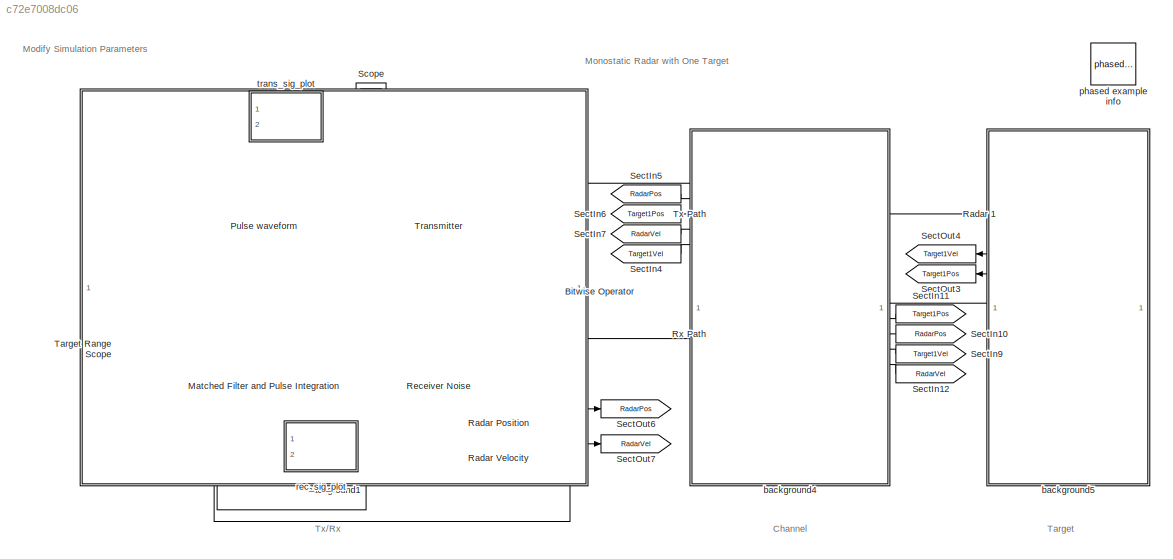
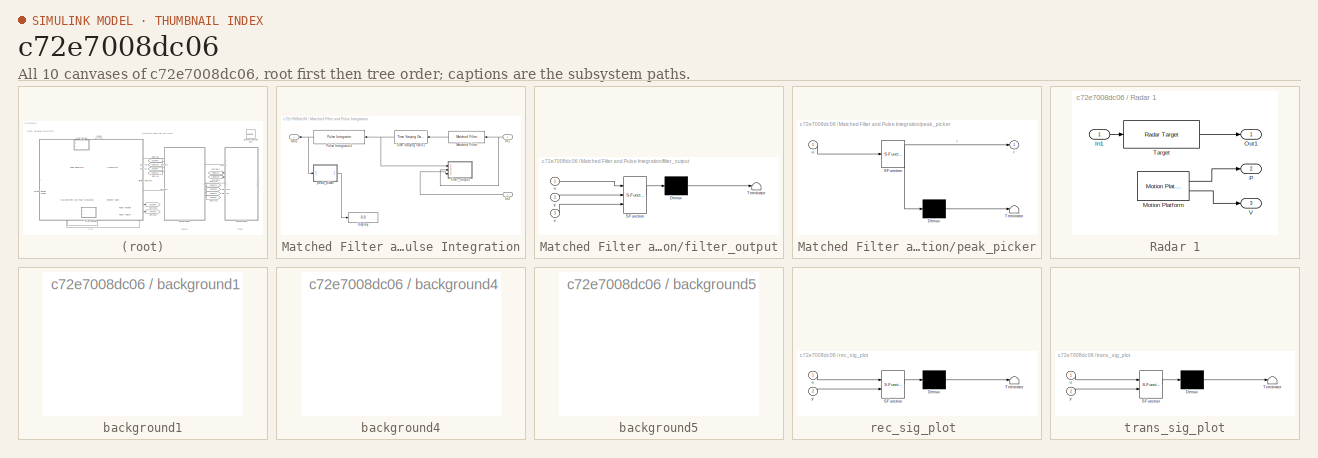
[diagram: thumbnail index - all 10 canvases of the model, root first then tree order]
MODEL slx_c72e7008dc06
KIND model
CONFIG AbsTol = auto
CONFIG FixedStep = auto
CONFIG MaxStep = auto
CONFIG MinStep = auto
CONFIG PreLoadFcn = helperslexMonostaticRadarParam()
CONFIG RelTol = 1e-3
CONFIG SampleTimeConstraint = Unconstrained
CONFIG Solver = FixedStepDiscrete
CONFIG SolverMode = Auto
CONFIG SolverName = FixedStepDiscrete
CONFIG StartTime = 0.0
CONFIG StopTime = 99/paramRadar.prf
BLOCK [Reference] Bitwise Operator  REF=simulink/Logic and Bit
Operations/Bitwise
Operator
  Ports = [1, 1]
  SourceBlock = simulink/Logic and Bit\nOperations/Bitwise\nOperator
  SourceType = Bitwise Operator
BLOCK [SubSystem] Matched Filter and Pulse Integration
  Ports = [2, 1]
  RequestExecContextInheritance = off
  Variant = off
BLOCK [Display] Matched Filter and Pulse Integration/Display
  Decimation = 1
  Ports = [1]
BLOCK [Inport] Matched Filter and Pulse Integration/In1
  IconDisplay = Port number
BLOCK [Inport] Matched Filter and Pulse Integration/In2
  IconDisplay = Port number
  Port = 2
BLOCK [Reference] Matched Filter and Pulse Integration/Matched Filter  REF=phaseddetectlib/Matched Filter
  Ports = [1, 1]
  SourceBlock = phaseddetectlib/Matched Filter
  SourceType = phased.MatchedFilter
BLOCK [Outport] Matched Filter and Pulse Integration/Out1
  IconDisplay = Port number
BLOCK [Reference] Matched Filter and Pulse Integration/Pulse Integrator1  REF=phaseddetectlib/Pulse Integrator
  Ports = [1, 1]
  SourceBlock = phaseddetectlib/Pulse Integrator
  SourceType = Pulse Integrator
BLOCK [Reference] Matched Filter and Pulse Integration/Time Varying Gain1  REF=phaseddetectlib/Time Varying Gain
  Ports = [1, 1]
  SourceBlock = phaseddetectlib/Time Varying Gain
  SourceType = phased.TimeVaryingGain
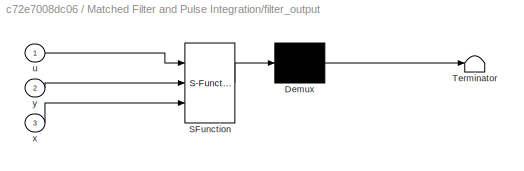
BLOCK [SubSystem] Matched Filter and Pulse Integration/filter_output
  ErrorFcn = Stateflow.Translate.translate
  PermitHierarchicalResolution = ExplicitOnly
  Ports = [3]
  RequestExecContextInheritance = off
  SFBlockType = MATLAB Function
  TreatAsAtomicUnit = on
  Variant = off
BLOCK [Demux] Matched Filter and Pulse Integration/filter_output/ Demux 
  Outputs = 1
  Ports = [1, 1]
BLOCK [S-Function] Matched Filter and Pulse Integration/filter_output/ SFunction 
  EnableBusSupport = on
  FunctionName = sf_sfun
  PortCounts = [3 1]
  Ports = [3, 1]
  SFunctionDeploymentMode = off
  Tag = Stateflow S-Function slexMonostaticRadarExample 4
BLOCK [Terminator] Matched Filter and Pulse Integration/filter_output/ Terminator 
BLOCK [Inport] Matched Filter and Pulse Integration/filter_output/u
  IconDisplay = Port number
BLOCK [Inport] Matched Filter and Pulse Integration/filter_output/x
  IconDisplay = Port number
  Port = 3
BLOCK [Inport] Matched Filter and Pulse Integration/filter_output/y
  IconDisplay = Port number
  Port = 2
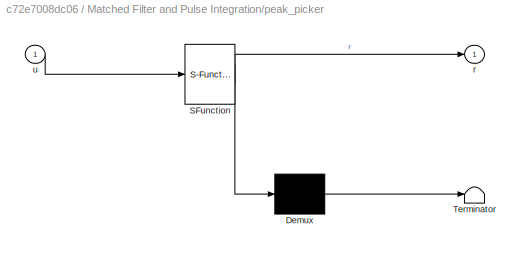
BLOCK [SubSystem] Matched Filter and Pulse Integration/peak_picker
  ErrorFcn = Stateflow.Translate.translate
  PermitHierarchicalResolution = ExplicitOnly
  Ports = [1, 1]
  RequestExecContextInheritance = off
  SFBlockType = MATLAB Function
  TreatAsAtomicUnit = on
  Variant = off
BLOCK [Demux] Matched Filter and Pulse Integration/peak_picker/ Demux 
  Outputs = 1
  Ports = [1, 1]
BLOCK [S-Function] Matched Filter and Pulse Integration/peak_picker/ SFunction 
  EnableBusSupport = on
  FunctionName = sf_sfun
  PortCounts = [1 2]
  Ports = [1, 2]
  SFunctionDeploymentMode = off
  Tag = Stateflow S-Function slexMonostaticRadarExample 3
BLOCK [Terminator] Matched Filter and Pulse Integration/peak_picker/ Terminator 
BLOCK [Outport] Matched Filter and Pulse Integration/peak_picker/r
  IconDisplay = Port number
BLOCK [Inport] Matched Filter and Pulse Integration/peak_picker/u
  IconDisplay = Port number
BLOCK [Reference] Pulse waveform  REF=phasedwavlib/Rectangular Waveform
  Ports = [0, 1]
  SourceBlock = phasedwavlib/Rectangular Waveform
  SourceType = phased.RectangularWaveform
BLOCK [SubSystem] Radar 1
  Ports = [1, 3]
  RequestExecContextInheritance = off
  Variant = off
BLOCK [Inport] Radar 1/In1
  IconDisplay = Port number
BLOCK [Reference] Radar 1/Motion Platform  REF=phasedenvlib/Motion Platform
  Ports = [0, 2]
  SourceBlock = phasedenvlib/Motion Platform
  SourceType = phased.Platform
BLOCK [Outport] Radar 1/Out1
  IconDisplay = Port number
BLOCK [Outport] Radar 1/P
  IconDisplay = Port number
  Port = 2
BLOCK [Reference] Radar 1/Target  REF=phasedenvlib/Radar Target
  Ports = [1, 1]
  SourceBlock = phasedenvlib/Radar Target
  SourceType = phased.RadarTarget
BLOCK [Outport] Radar 1/V
  IconDisplay = Port number
  Port = 3
BLOCK [Constant] Radar Position
  SampleTime = 1/paramRadar.prf
  Value = [ 0; 0; 0 ]
BLOCK [Constant] Radar Velocity
  SampleTime = 1/paramRadar.prf
  Value = [ 0; 0; 0 ]
BLOCK [Reference] Receiver Noise  REF=phasedtxrxlib/Receiver Preamp
  Ports = [2, 1]
  SourceBlock = phasedtxrxlib/Receiver Preamp
  SourceType = phased.ReceiverPreamp
BLOCK [Reference] Rx Path  REF=phasedenvlib/Free Space
  Ports = [5, 1]
  SourceBlock = phasedenvlib/Free Space
  SourceType = phased.FreeSpace
BLOCK [Scope] Scope
  Ports = [1]
  ScopeSpecificationString = Simulink.scopes.TimeScopeBlockCfg('CurrentConfiguration', extmgr.ConfigurationSet(extmgr.Configuration('Core','General UI',true,'DisplayFullSourceName',true),extmgr.Configuration('Core','Source UI',true),extmgr.Configuration('Sources','WiredSimulink',true),extmgr.Configuration('Visuals','Time Domain',true,'SerializedDisplays',{struct('MinYLimReal','-0.41955','MaxYLimReal','3.77593','YLabelReal',''...<+11716ch>
BLOCK [From] SectIn10
  GotoTag = RadarPos
BLOCK [From] SectIn11
  GotoTag = Target1Pos
BLOCK [From] SectIn12
  GotoTag = RadarVel
BLOCK [From] SectIn4
  GotoTag = Target1Vel
BLOCK [From] SectIn5
  GotoTag = RadarPos
BLOCK [From] SectIn6
  GotoTag = Target1Pos
BLOCK [From] SectIn7
  GotoTag = RadarVel
BLOCK [From] SectIn9
  GotoTag = Target1Vel
BLOCK [Goto] SectOut3
  GotoTag = Target1Pos
BLOCK [Goto] SectOut4
  GotoTag = Target1Vel
BLOCK [Goto] SectOut6
  GotoTag = RadarPos
BLOCK [Goto] SectOut7
  GotoTag = RadarVel
BLOCK [ArrayPlot] Target Range Scope
  NumInputPorts = 1
  Ports = [1]
  ScopeSpecificationString = dsp.scopes.ArrayPlotBlockSpecification('CurrentConfiguration', extmgr.ConfigurationSet(extmgr.Configuration('Core','General UI',true),extmgr.Configuration('Core','Source UI',true),extmgr.Configuration('Sources','WiredSimulink',true),extmgr.Configuration('Sources','Simulink',false),extmgr.Configuration('Sources','File',false),extmgr.Configuration('Sources','Workspace',false),extmgr.Configuration('S...<+3047ch>
BLOCK [Reference] Transmitter  REF=phasedtxrxlib/Transmitter
  Ports = [1, 2]
  SourceBlock = phasedtxrxlib/Transmitter
  SourceType = phased.Transmitter
BLOCK [Reference] Tx Path  REF=phasedenvlib/Free Space
  Ports = [5, 1]
  SourceBlock = phasedenvlib/Free Space
  SourceType = phased.FreeSpace
BLOCK [SubSystem] background1
  Description = Jammer
  Ports = []
  RequestExecContextInheritance = off
  Variant = off
BLOCK [SubSystem] background4
  Description = Jammer
  Ports = []
  RequestExecContextInheritance = off
  Variant = off
BLOCK [SubSystem] background5
  Description = Jammer
  Ports = []
  RequestExecContextInheritance = off
  Variant = off
BLOCK [Reference] phased example info  REF=phasedmisclib/phased example info
  Ports = []
  SourceBlock = phasedmisclib/phased example info
BLOCK [SubSystem] rec_sig_plot 
  ErrorFcn = Stateflow.Translate.translate
  PermitHierarchicalResolution = ExplicitOnly
  Ports = [2]
  RequestExecContextInheritance = off
  SFBlockType = MATLAB Function
  TreatAsAtomicUnit = on
  Variant = off
BLOCK [Demux] rec_sig_plot / Demux 
  Outputs = 1
  Ports = [1, 1]
BLOCK [S-Function] rec_sig_plot / SFunction 
  EnableBusSupport = on
  FunctionName = sf_sfun
  PortCounts = [2 1]
  Ports = [2, 1]
  SFunctionDeploymentMode = off
  Tag = Stateflow S-Function slexMonostaticRadarExample 1
BLOCK [Terminator] rec_sig_plot / Terminator 
BLOCK [Inport] rec_sig_plot /u
  IconDisplay = Port number
BLOCK [Inport] rec_sig_plot /y
  IconDisplay = Port number
  Port = 2
BLOCK [SubSystem] trans_sig_plot
  ErrorFcn = Stateflow.Translate.translate
  PermitHierarchicalResolution = ExplicitOnly
  Ports = [2]
  RequestExecContextInheritance = off
  SFBlockType = MATLAB Function
  TreatAsAtomicUnit = on
  Variant = off
BLOCK [Demux] trans_sig_plot/ Demux 
  Outputs = 1
  Ports = [1, 1]
BLOCK [S-Function] trans_sig_plot/ SFunction 
  EnableBusSupport = on
  FunctionName = sf_sfun
  PortCounts = [2 1]
  Ports = [2, 1]
  SFunctionDeploymentMode = off
  Tag = Stateflow S-Function slexMonostaticRadarExample 2
BLOCK [Terminator] trans_sig_plot/ Terminator 
BLOCK [Inport] trans_sig_plot/u
  IconDisplay = Port number
BLOCK [Inport] trans_sig_plot/y
  IconDisplay = Port number
  Port = 2
ANNOTATION (root): Monostatic Radar with One Target
ANNOTATION (root): Channel
ANNOTATION (root): Modify Simulation Parameters
ANNOTATION (root): Target
ANNOTATION (root): Tx/Rx
LINE Bitwise Operator:1 -> Receiver Noise:2
NET Matched Filter and Pulse Integration/In1:1 -> Matched Filter and Pulse Integration/Matched Filter:1, Matched Filter and Pulse Integration/filter_output:2
LINE Matched Filter and Pulse Integration/In2:1 -> Matched Filter and Pulse Integration/filter_output:3
LINE Matched Filter and Pulse Integration/Matched Filter:1 -> Matched Filter and Pulse Integration/Time Varying Gain1:1
NET Matched Filter and Pulse Integration/Pulse Integrator1:1 -> Matched Filter and Pulse Integration/Out1:1, Matched Filter and Pulse Integration/peak_picker:1
NET Matched Filter and Pulse Integration/Time Varying Gain1:1 -> Matched Filter and Pulse Integration/Pulse Integrator1:1, Matched Filter and Pulse Integration/filter_output:1
LINE Matched Filter and Pulse Integration/peak_picker:1 -> Matched Filter and Pulse Integration/Display:1
LINE Matched Filter and Pulse Integration:1 -> Target Range Scope:1
NET Pulse waveform:1 -> Transmitter:1, trans_sig_plot:1
LINE Radar 1/In1:1 -> Radar 1/Target:1
LINE Radar 1/Motion Platform:1 -> Radar 1/P:1
LINE Radar 1/Motion Platform:2 -> Radar 1/V:1
LINE Radar 1/Target:1 -> Radar 1/Out1:1
LINE Radar 1:1 -> Rx Path:1
LINE Radar 1:2 -> SectOut3:1
LINE Radar 1:3 -> SectOut4:1
LINE Radar Position:1 -> SectOut6:1
LINE Radar Velocity:1 -> SectOut7:1
NET Receiver Noise:1 -> Matched Filter and Pulse Integration:1, rec_sig_plot :1
LINE Rx Path:1 -> Receiver Noise:1
LINE SectIn10:1 -> Rx Path:3
LINE SectIn11:1 -> Rx Path:2
LINE SectIn12:1 -> Rx Path:5
LINE SectIn4:1 -> Tx Path:5
LINE SectIn5:1 -> Tx Path:2
LINE SectIn6:1 -> Tx Path:3
LINE SectIn7:1 -> Tx Path:4
LINE SectIn9:1 -> Rx Path:4
NET Transmitter:1 -> Matched Filter and Pulse Integration:2, Scope:1, Tx Path:1, rec_sig_plot :2, trans_sig_plot:2
LINE Transmitter:2 -> Bitwise Operator:1
LINE Tx Path:1 -> Radar 1:1
note: NET lines group one-source signal fan-out (src -> all destinations, sorted); 1:1 wires keep LINE
CHART rec_sig_plot
 states=1 transitions=1
  STATE_LABEL 'eML_blk_kernel()'
  STATE_LABEL "SCRIPT:\nfunction fcn(u, y)\n%#codegen\n\n%y = u;\na = linspace(1e-9, 25e-9, length(u));\n% a = [1e-9 : 0.1e-9 : 3e-9];\n% b = linspace(1e-9, 25e-9, length(y(1:5)));\n% c = [];\n% x = [0.1e-6 : 0.1e-6 : 1e-6];\n% figure(2);\n% plot(a, real(u), 'b')\n% hold on;\n% % figure(2);\n% plot(a, real(y),'r')\n% figure(3);\n% plot(c)\n% c = [c c];\n"
CHART trans_sig_plot states=1 transitions=1
  STATE_LABEL 'eML_blk_kernel()'
  STATE_LABEL "SCRIPT:\nfunction fcn(u, y)\n%#codegen\n\n%y = u;\na = linspace(1e-9, 5e-9, length(u(1:5)));\n% a = [1e-9 : 0.1e-9 : 3e-9];\n% b = linspace(1e-9, 5e-9, length(y(1:5)));\n% c = [];\n% x = [0.1e-6 : 0.1e-6 : 1e-6];\n% figure(1);\n% plot(a, real(u(1:5)), 'b')\n% hold on;\n% % figure(2);\n% plot(a, real(y(1:5)),'r')\n% figure(3);\n% plot(c)\n% c = [c c];\n"
CHART Matched Filter and
Pulse Integration/peak_picker states=1 transitions=1
  STATE_LABEL 'eML_blk_kernel()'
  STATE_LABEL "SCRIPT:\nfunction r = fcn(u)\n%#codegen\n\nthresh = 2e-6;\n% thresh = 10;\nx = abs(u);\nnumber = 3;\nsortem = 0;\npeakz = zeros(size(x));\nlocs = zeros(size(x));\n% [rpeaks, rlocs] = pkpicker(abs(u), range_thresh, 30);\n\n% if nargin == 1\n%    thresh = -inf;   number = -1;   sortem = 0;\n% elseif nargin == 2\n%    number = -1;   sortem = 0;\n% elseif nargin == 3\n%    sortem = 0;\n% end\n% if strcmp(sortem,'sort')\n%...<+971ch>"
CHART Matched Filter and
Pulse Integration/filter_output states=1 transitions=1
  STATE_LABEL 'eML_blk_kernel()'
  STATE_LABEL "SCRIPT:\nfunction fcn(u, y, x)\n%#codegen\n\na = linspace(1e-9, 25e-9, length(u));\nplot(a, real(u), 'b')\n% hold on;\n% plot(a, real(y), 'r')\n% hold on;\n% plot(a, real(x), 'g')"
